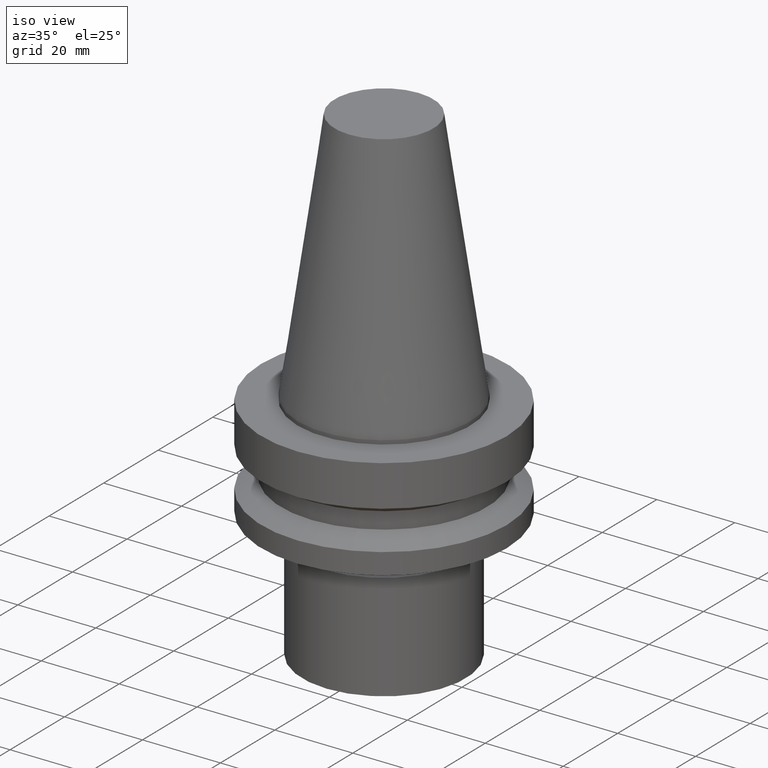
[diagram: clean part render]
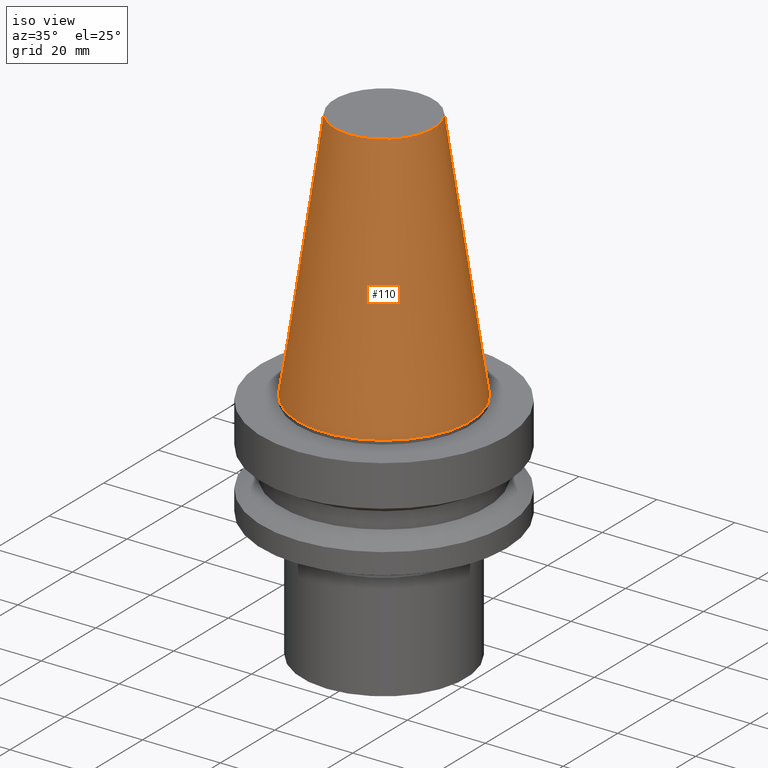
[diagram: same view with one face highlighted and labeled with its STEP entity id]
A machine part, iso view. The second image highlights one B-rep face of the part: STEP entity #110.
In plain terms, the highlighted conical surface has half-angle 8.297 deg.
Its self-contained STEP definition (entity closure, byte-faithful):
#110=ADVANCED_FACE('Unnamed[1]',(#252,#253),#254,.T.);
#114=EDGE_CURVE('Unnamed[1]',#259,#259,#260,.T.);
#122=EDGE_CURVE('Unnamed[1]',#272,#272,#273,.T.);
#252=FACE_BOUND('',#441,.T.);
#253=FACE_BOUND('',#442,.T.);
#254=CONICAL_SURFACE('',#443,17.4562500000001,0.144812498238936);
#259=VERTEX_POINT('',#450);
#260=CIRCLE('',#451,22.225);
#272=VERTEX_POINT('',#466);
#273=CIRCLE('',#467,12.6875000000001);
#441=EDGE_LOOP('',(#634));
#442=EDGE_LOOP('',(#635));
#443=AXIS2_PLACEMENT_3D('',#636,#637,#638);
#450=CARTESIAN_POINT('',(1.71319921032766E-029,22.2250000000001,-2.8153873565375E-013));
#451=AXIS2_PLACEMENT_3D('',#642,#643,#644);
#466=CARTESIAN_POINT('',(-4.00459503321185E-015,12.6875000000002,65.4000000000001));
#467=AXIS2_PLACEMENT_3D('',#657,#658,#659);
#634=ORIENTED_EDGE('',*,*,#114,.F.);
#635=ORIENTED_EDGE('',*,*,#122,.T.);
#636=CARTESIAN_POINT('',(-2.00229751660592E-015,5.9080489974516E-014,32.6999999999999));
#637=DIRECTION('',(6.12323399573677E-017,-5.36731610657134E-016,-1.0));
#638=DIRECTION('',(2.80381797188541E-032,1.0,-5.36731610657134E-016));
#642=CARTESIAN_POINT('',(1.65331138531142E-029,4.15293663060276E-014,-2.70006239588838E-013));
#643=DIRECTION('',(6.12323399573677E-017,-5.36731610657134E-016,-1.0));
#644=DIRECTION('',(2.80381797188541E-032,1.0,-5.36731610657134E-016));
#657=CARTESIAN_POINT('',(-4.00459503321185E-015,7.66316136430044E-014,65.4000000000001));
#658=DIRECTION('',(6.12323399573677E-017,-5.36731610657134E-016,-1.0));
#659=DIRECTION('',(2.80381797188541E-032,1.0,-5.36731610657134E-016));